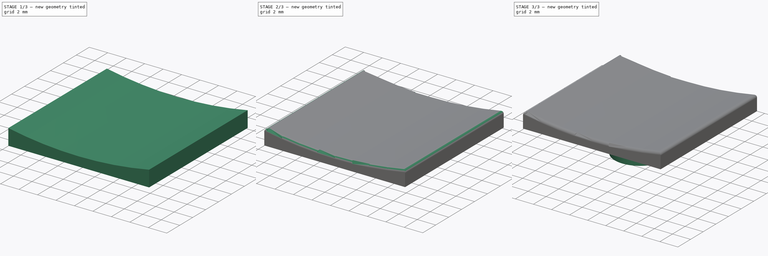
[diagram: build sequence overview — one tinted view per stage of 3, left to right]
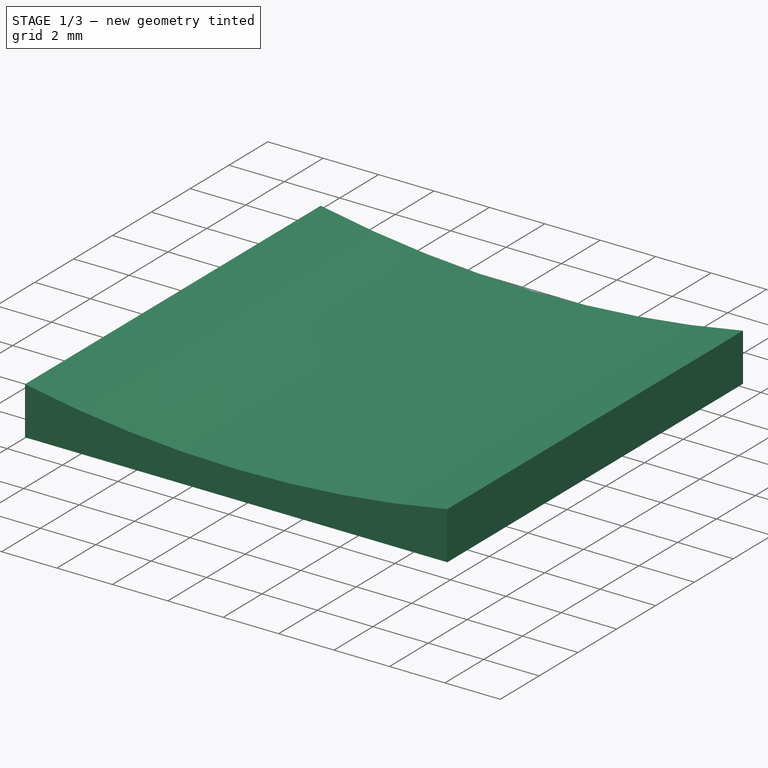
[diagram: stage 1 of 3 — iso view after this stage's code; geometry added in this stage tinted green]
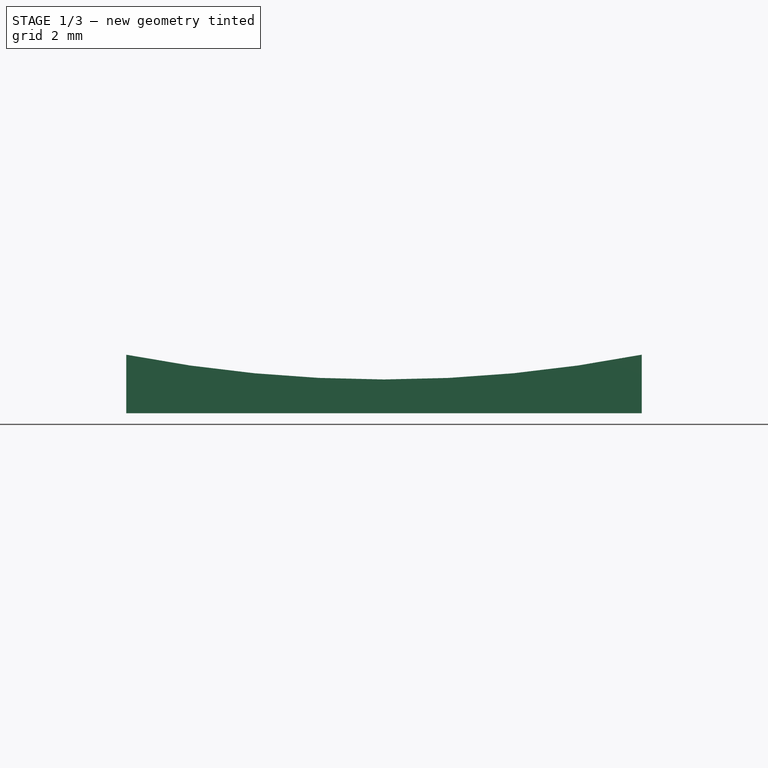
[diagram: stage 1 of 3 — front view after this stage's code; geometry added in this stage tinted green]
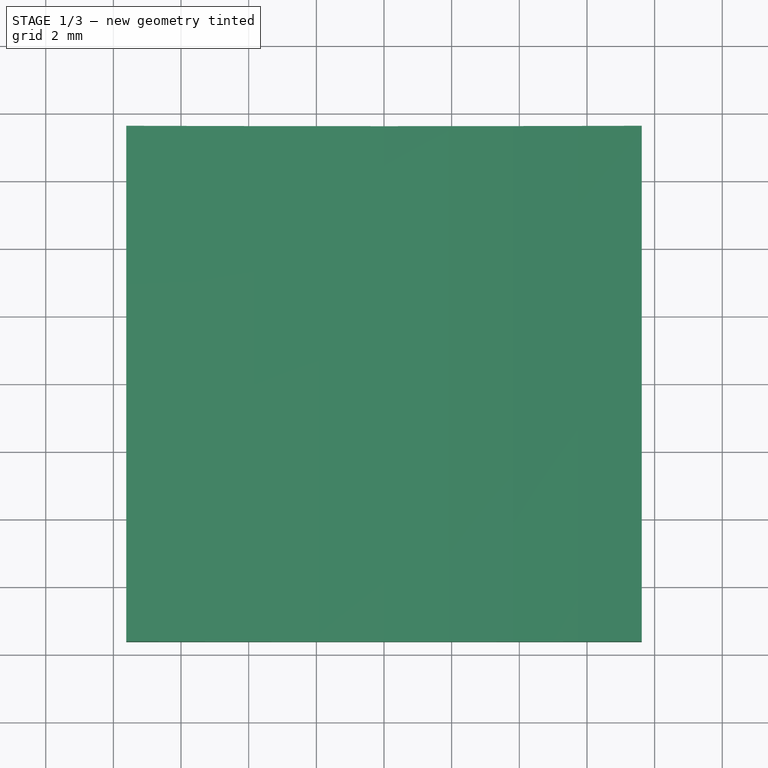
[diagram: stage 1 of 3 — top view after this stage's code; geometry added in this stage tinted green]
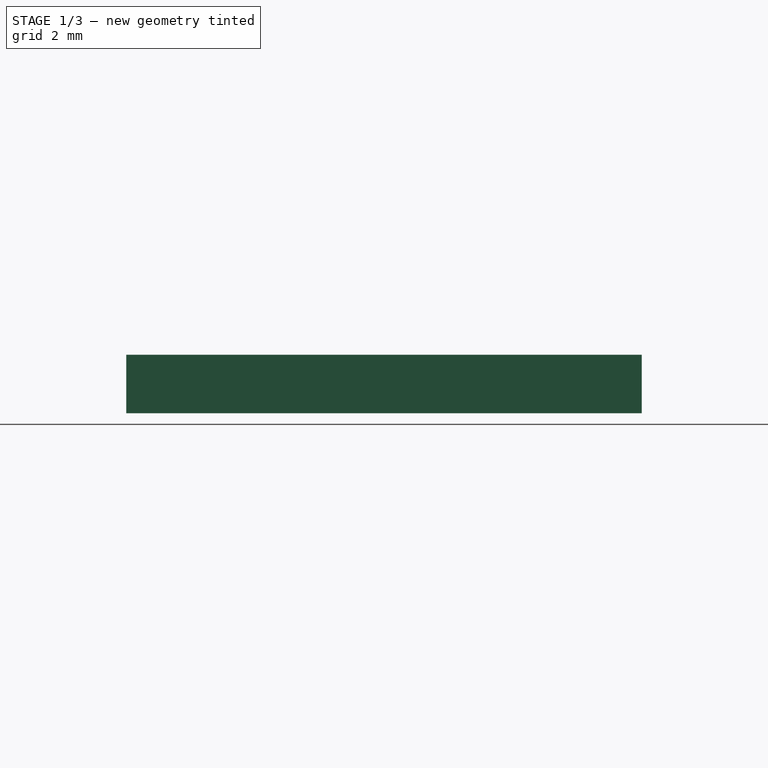
[diagram: stage 1 of 3 — right view after this stage's code; geometry added in this stage tinted green]
FCSTD DOCUMENT  (FreeCAD 0.18.4R)
Label: square
License: All rights reserved
LicenseURL: http://en.wikipedia.org/wiki/All_rights_reserved
objects: Sketcher::SketchObject×3, PartDesign::Pad×2, PartDesign::SubtractiveCylinder×1, PartDesign::Fillet×1, PartDesign::Pocket×1, PartDesign::Body×1
note: 13 computed .brp shape members not serialized (recipe doc carries the construction recipe); baked Part::Feature solids carry a one-line shape summary decoded from their .brp

FEATURE [Sketcher::SketchObject] Sketch
  MapMode = 5
  Support = -> [XY_Plane]
  sketch-geometry (6):
    g0: LineSegment StartX=-7.62 StartY=7.62 StartZ=0 EndX=7.62 EndY=7.62 EndZ=0
    g1: LineSegment StartX=7.62 StartY=7.62 StartZ=0 EndX=7.62 EndY=-7.62 EndZ=0
    g2: LineSegment StartX=7.62 StartY=-7.62 StartZ=0 EndX=-7.62 EndY=-7.62 EndZ=0
    g3: LineSegment StartX=-7.62 StartY=-7.62 StartZ=0 EndX=-7.62 EndY=7.62 EndZ=0
    g4: LineSegment [constr] StartX=-7.62 StartY=7.62 StartZ=0 EndX=7.62 EndY=-7.62 EndZ=0
    g5: LineSegment [constr] StartX=7.62 StartY=7.62 StartZ=0 EndX=-7.62 EndY=-7.62 EndZ=0
  constraints (16):
    c: Coincident(g0,g1)
    c: Coincident(g1,g2)
    c: Coincident(g2,g3)
    c: Coincident(g3,g0)
    c: Horizontal(g0)
    c: Horizontal(g2)
    c: Vertical(g1)
    c: Vertical(g3)
    c: Equal(g0,g1)
    c: Coincident(g4,g0)
    c: Coincident(g5,g0)
    c: Coincident(g5,g2)
    c: Coincident(g4,g1)
    c: PointOnObject(g-1,g5)
    c: PointOnObject(g-1,g4)
    c: Distance(g0) = 15.24
FEATURE [PartDesign::Pad] Pad
  Length = 2
  Length2 = 100
  Profile = -> Sketch
  Type = 0
FEATURE [PartDesign::SubtractiveCylinder] Cylinder
  Angle = 360
  AttacherType = Attacher::AttachEngine3D
  AttachmentOffset = pos=(0,9,39) rot=(1,0,0;1.5708rad)
  BaseFeature = -> Pad
  Height = 18
  MapMode = 5
  Placement = pos=(0,9,41) rot=(1,0,0;1.5708rad)
  Radius = 40
  Support = -> [Pad]
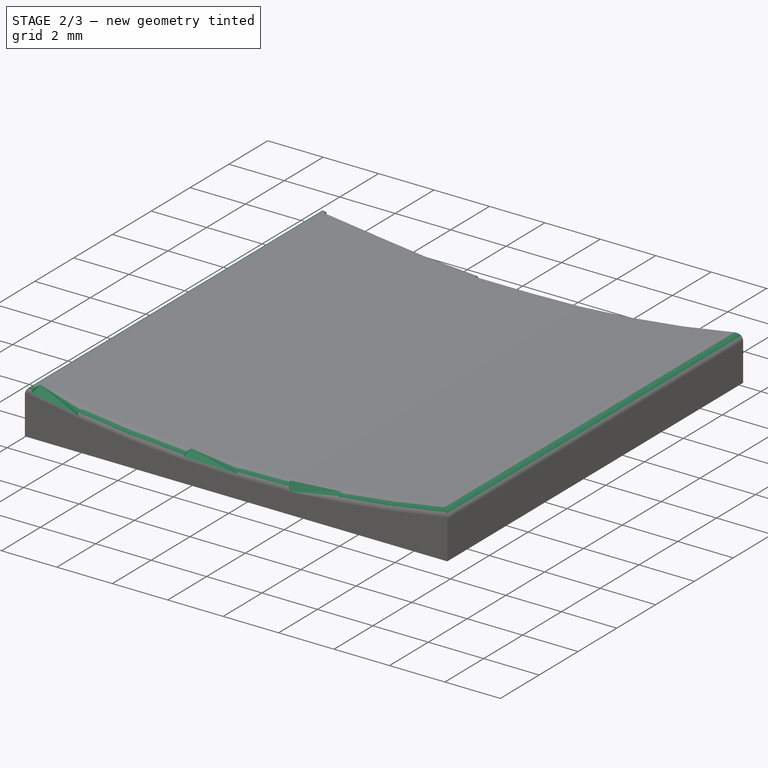
[diagram: stage 2 of 3 — iso view after this stage's code; geometry added in this stage tinted green]
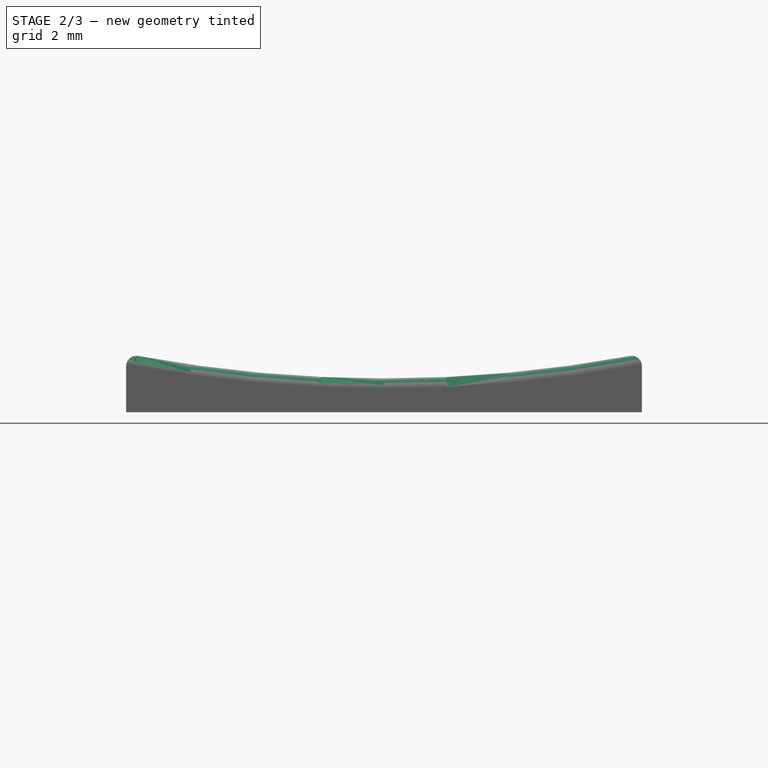
[diagram: stage 2 of 3 — front view after this stage's code; geometry added in this stage tinted green]
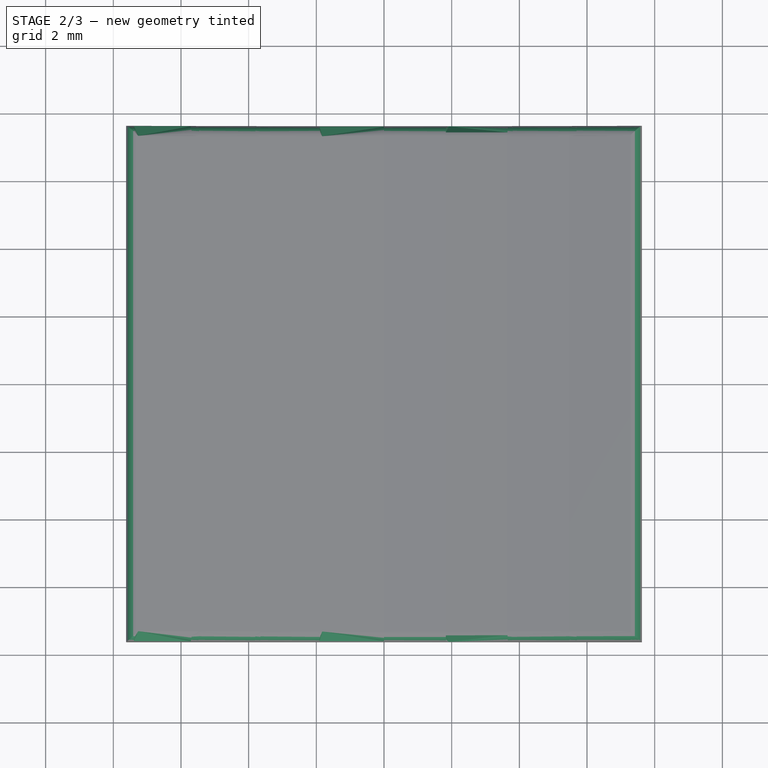
[diagram: stage 2 of 3 — top view after this stage's code; geometry added in this stage tinted green]
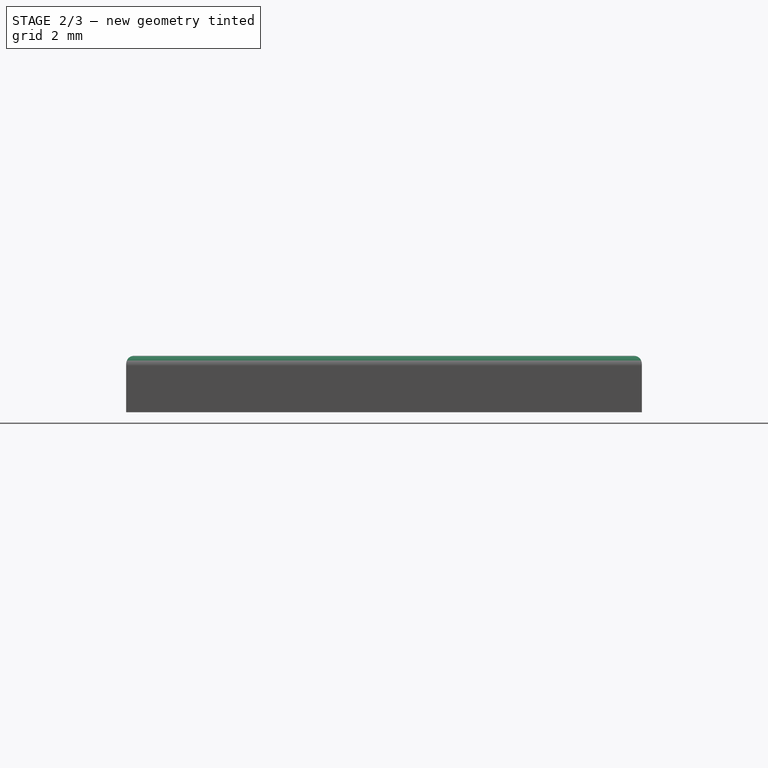
[diagram: stage 2 of 3 — right view after this stage's code; geometry added in this stage tinted green]
FEATURE [PartDesign::Fillet] Fillet
  Base = -> Cylinder [Edge11,Edge10,Edge9,Edge3]
  BaseFeature = -> Cylinder
  Placement = pos=(0,9,41) rot=(1,0,0;1.5708rad)
  Radius = 0.3
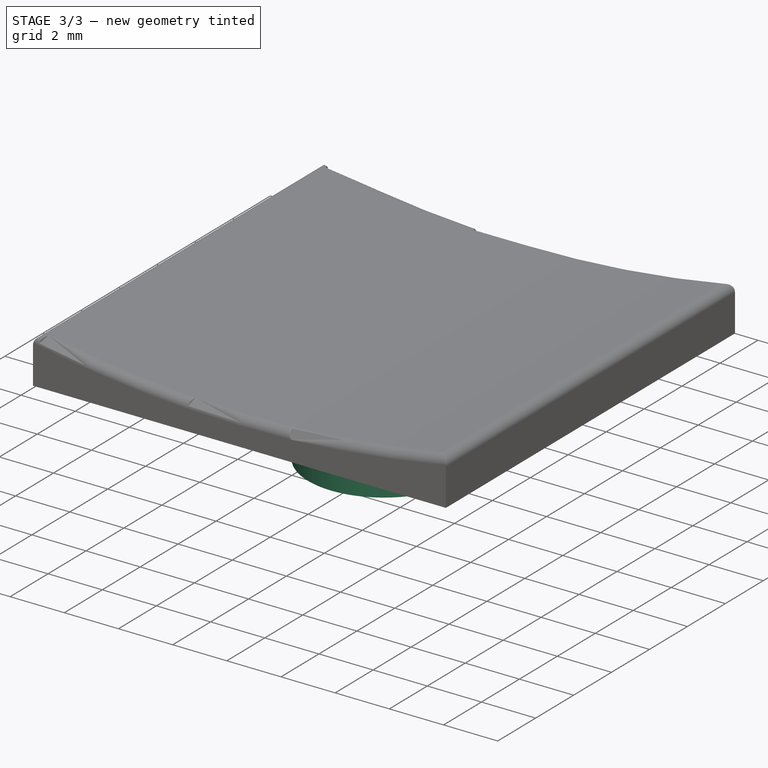
[diagram: stage 3 of 3 — iso view after this stage's code; geometry added in this stage tinted green]
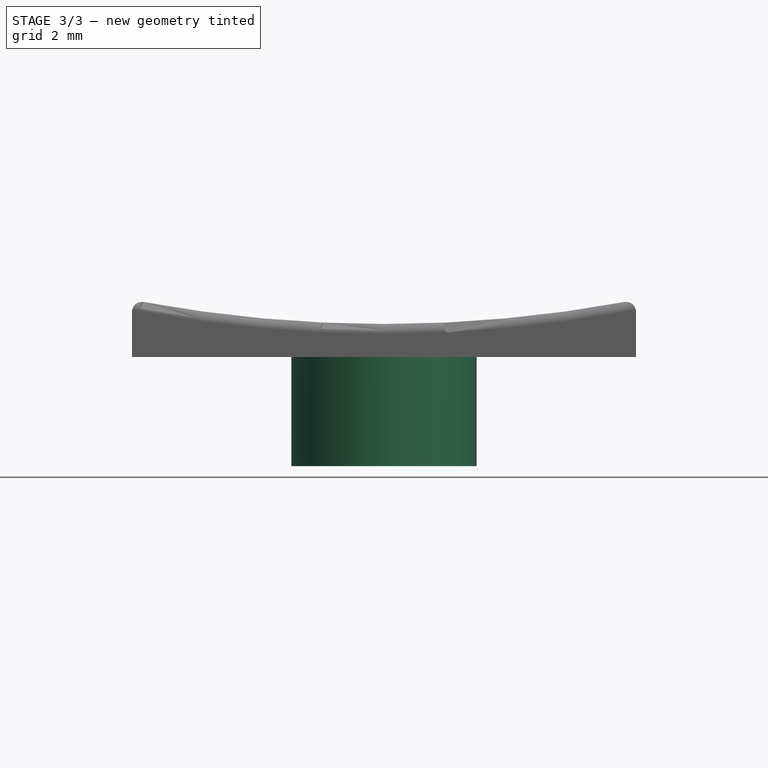
[diagram: stage 3 of 3 — front view after this stage's code; geometry added in this stage tinted green]
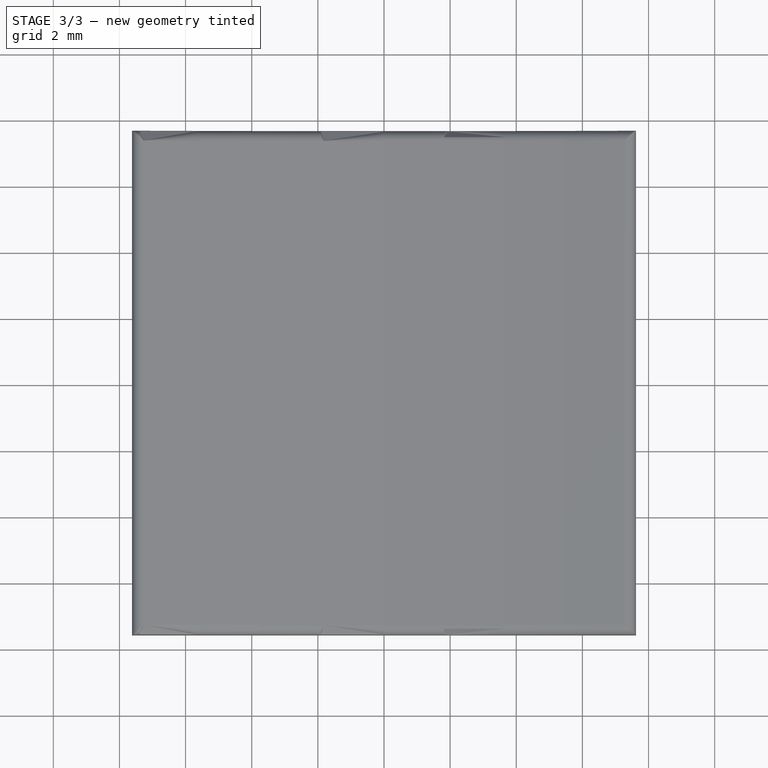
[diagram: stage 3 of 3 — top view after this stage's code; geometry added in this stage tinted green]
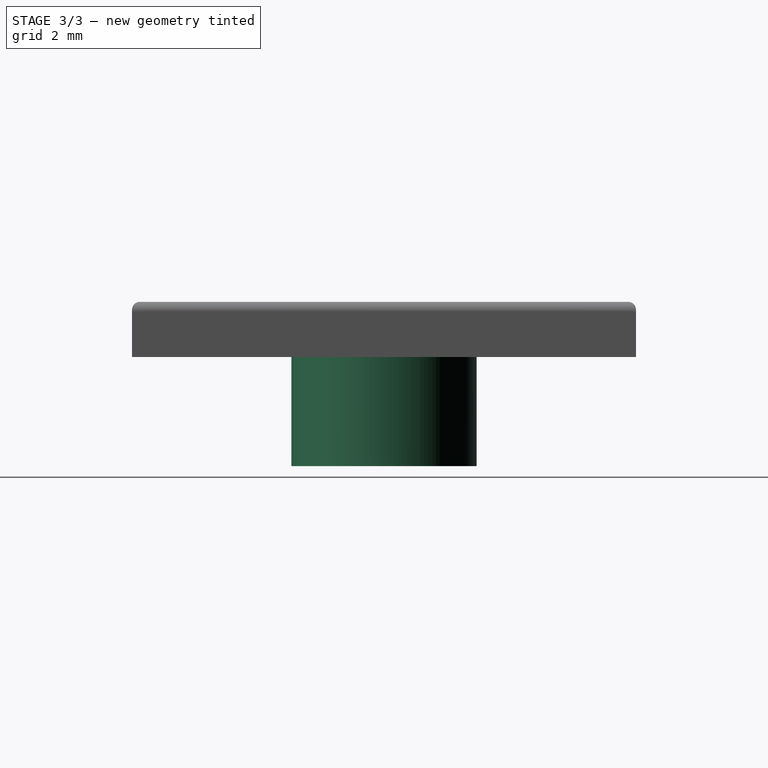
[diagram: stage 3 of 3 — right view after this stage's code; geometry added in this stage tinted green]
FEATURE [Sketcher::SketchObject] Sketch001
  ExternalGeometry = -> [Fillet]
  MapMode = 5
  Placement = pos=(0,9,0) rot=(1,0,0;3.14159rad)
  Support = -> [Fillet]
  sketch-geometry (3):
    g0: Circle CenterX=4e-16 CenterY=9 CenterZ=0 NormalX=0 NormalY=0 NormalZ=1 AngleXU=0 Radius=2.8
    g1: LineSegment [constr] StartX=-7.62 StartY=16.62 StartZ=0 EndX=7.62 EndY=1.38 EndZ=0
    g2: LineSegment [constr] StartX=7.62 StartY=16.62 StartZ=0 EndX=-7.62 EndY=1.38 EndZ=0
  constraints (7):
    c: Coincident(g2,g-3)
    c: Coincident(g1,g-3)
    c: Coincident(g2,g-4)
    c: Coincident(g1,g-4)
    c: PointOnObject(g0,g2)
    c: PointOnObject(g0,g1)
    c: Radius(g0) = 2.8
FEATURE [PartDesign::Pad] Pad001
  BaseFeature = -> Fillet
  Length = 3.3
  Length2 = 100
  Placement = pos=(0,9,41) rot=(1,0,0;1.5708rad)
  Profile = -> Sketch001
  Type = 0
FEATURE [Sketcher::SketchObject] Sketch002
  ExternalGeometry = -> [Pad001]
  MapMode = 5
  Placement = pos=(0,9,-3.3) rot=(1,0,0;3.14159rad)
  Support = -> [Pad001]
  sketch-geometry (15):
    g0: LineSegment [constr] StartX=-7.62 StartY=16.62 StartZ=0 EndX=7.62 EndY=1.38 EndZ=0
    g1: LineSegment [constr] StartX=7.62 StartY=16.62 StartZ=0 EndX=-7.62 EndY=1.38 EndZ=0
    g2: LineSegment [constr] StartX=-0.595 StartY=10.95 StartZ=0 EndX=-0.595 EndY=7.05 EndZ=0
    g3: LineSegment StartX=-0.595 StartY=10.95 StartZ=0 EndX=0.595 EndY=10.95 EndZ=0
    g4: LineSegment StartX=0.595 StartY=10.95 StartZ=0 EndX=0.595 EndY=9.595 EndZ=0
    g5: LineSegment StartX=0.595 StartY=9.595 StartZ=0 EndX=1.95 EndY=9.595 EndZ=0
    g6: LineSegment StartX=1.95 StartY=9.595 StartZ=0 EndX=1.95 EndY=8.405 EndZ=0
    g7: LineSegment StartX=1.95 StartY=8.405 StartZ=0 EndX=0.595 EndY=8.405 EndZ=0
    g8: LineSegment StartX=0.595 StartY=8.405 StartZ=0 EndX=0.595 EndY=7.05 EndZ=0
    g9: LineSegment StartX=0.595 StartY=7.05 StartZ=0 EndX=-0.595 EndY=7.05 EndZ=0
    g10: LineSegment StartX=-0.595 StartY=7.05 StartZ=0 EndX=-0.595 EndY=8.405 EndZ=0
    g11: LineSegment StartX=-0.595 StartY=8.405 StartZ=0 EndX=-1.95 EndY=8.405 EndZ=0
    g12: LineSegment StartX=-1.95 StartY=8.405 StartZ=0 EndX=-1.95 EndY=9.595 EndZ=0
    g13: LineSegment StartX=-1.95 StartY=9.595 StartZ=0 EndX=-0.595 EndY=9.595 EndZ=0
    g14: LineSegment StartX=-0.595 StartY=9.595 StartZ=0 EndX=-0.595 EndY=10.95 EndZ=0
  constraints (42):
    c: Coincident(g1,g-3)
    c: Coincident(g-3,g0)
    c: Coincident(g1,g-4)
    c: Coincident(g0,g-4)
    c: Vertical(g2)
    c: Distance(g2) = 3.9
    c: Horizontal(g3)
    c: Horizontal(g5)
    c: Horizontal(g7)
    c: Horizontal(g9)
    c: Horizontal(g11)
    c: Horizontal(g13)
    c: Vertical(g14)
    c: Vertical(g4)
    c: Vertical(g6)
    c: Vertical(g8)
    c: Vertical(g10)
    c: Vertical(g12)
    c: Coincident(g14,g3)
    c: Coincident(g4,g3)
    c: Coincident(g4,g5)
    c: Coincident(g5,g6)
    c: Coincident(g6,g7)
    c: Coincident(g7,g8)
    c: Coincident(g8,g9)
    c: Coincident(g9,g10)
    c: Coincident(g10,g11)
    c: Coincident(g12,g11)
    c: Coincident(g12,g13)
    c: Coincident(g13,g14)
    c: Coincident(g2,g3)
    c: Coincident(g2,g9)
    c: Equal(g14,g4)
    c: Equal(g8,g10)
    c: Equal(g7,g5)
    c: Distance(g12) = 1.19
    c: Equal(g13,g5)
    c: Equal(g4,g5)
    c: Equal(g14,g10)
    c: Equal(g3,g12)
    c: PointOnObject(g13,g0)
    c: PointOnObject(g4,g1)
FEATURE [PartDesign::Pocket] Pocket
  BaseFeature = -> Pad001
  Length = 3.3
  Length2 = 100
  Placement = pos=(0,9,41) rot=(1,0,0;1.5708rad)
  Profile = -> Sketch002
  Type = 0
FEATURE [PartDesign::Body] Body
  Group = -> [Sketch,Pad,Cylinder,Fillet,Sketch001,Pad001,Sketch002,Pocket]
  Origin = -> Origin
  Tip = -> Pocket
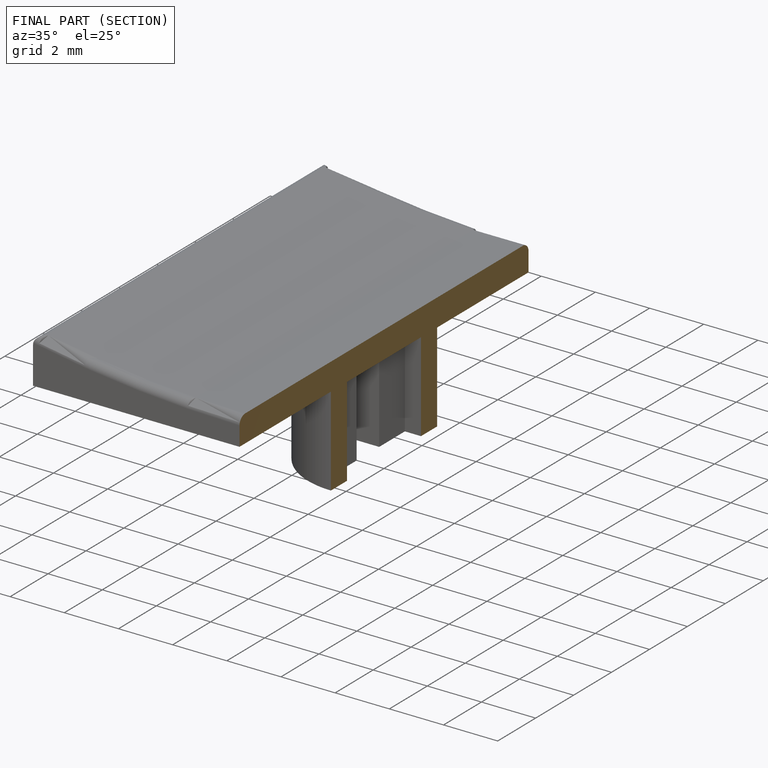
[diagram: finished part — half-section view (interior)]
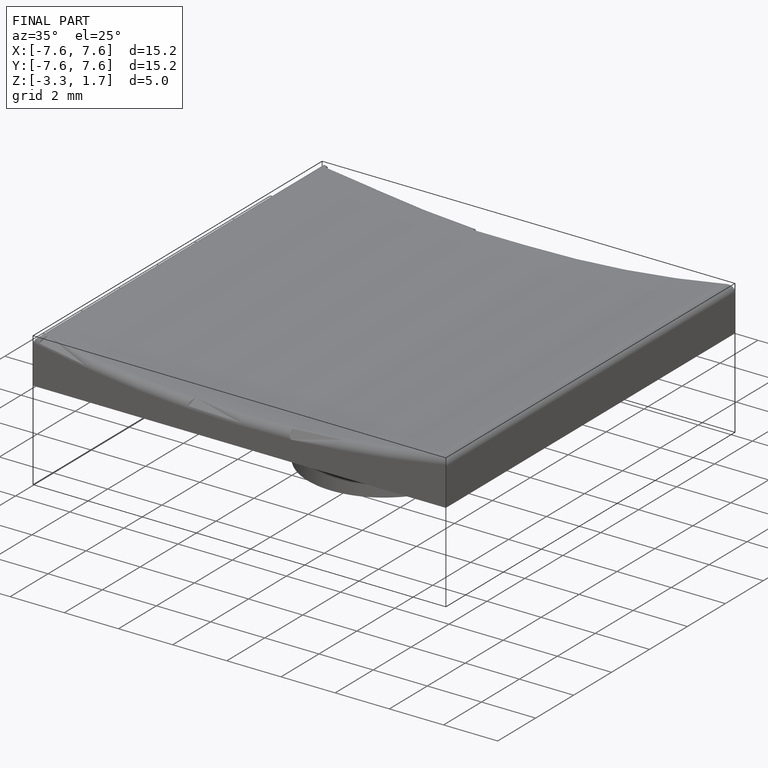
[diagram: finished part — iso view with bounding-box wireframe]
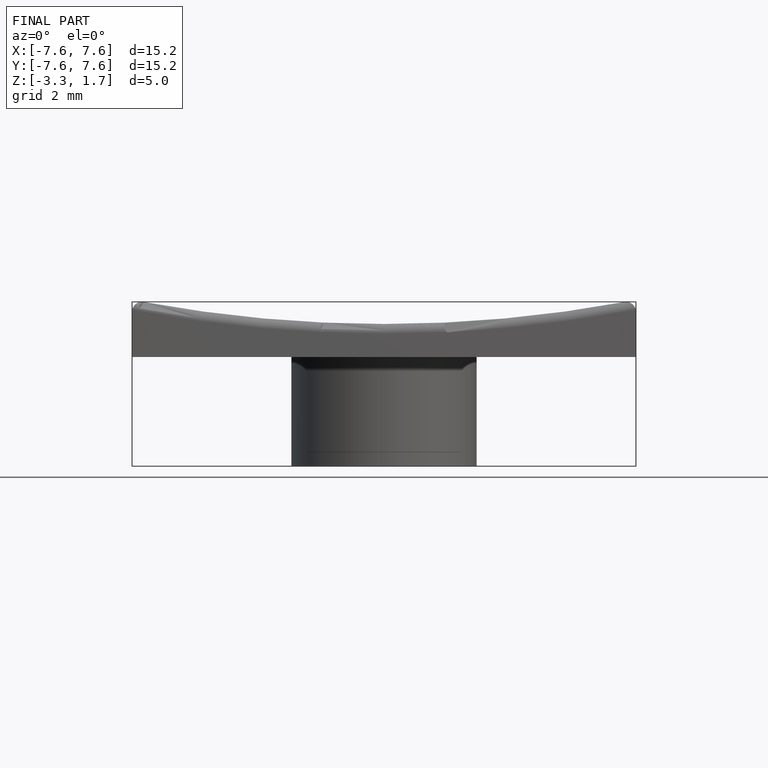
[diagram: finished part — front view with bounding-box wireframe]
